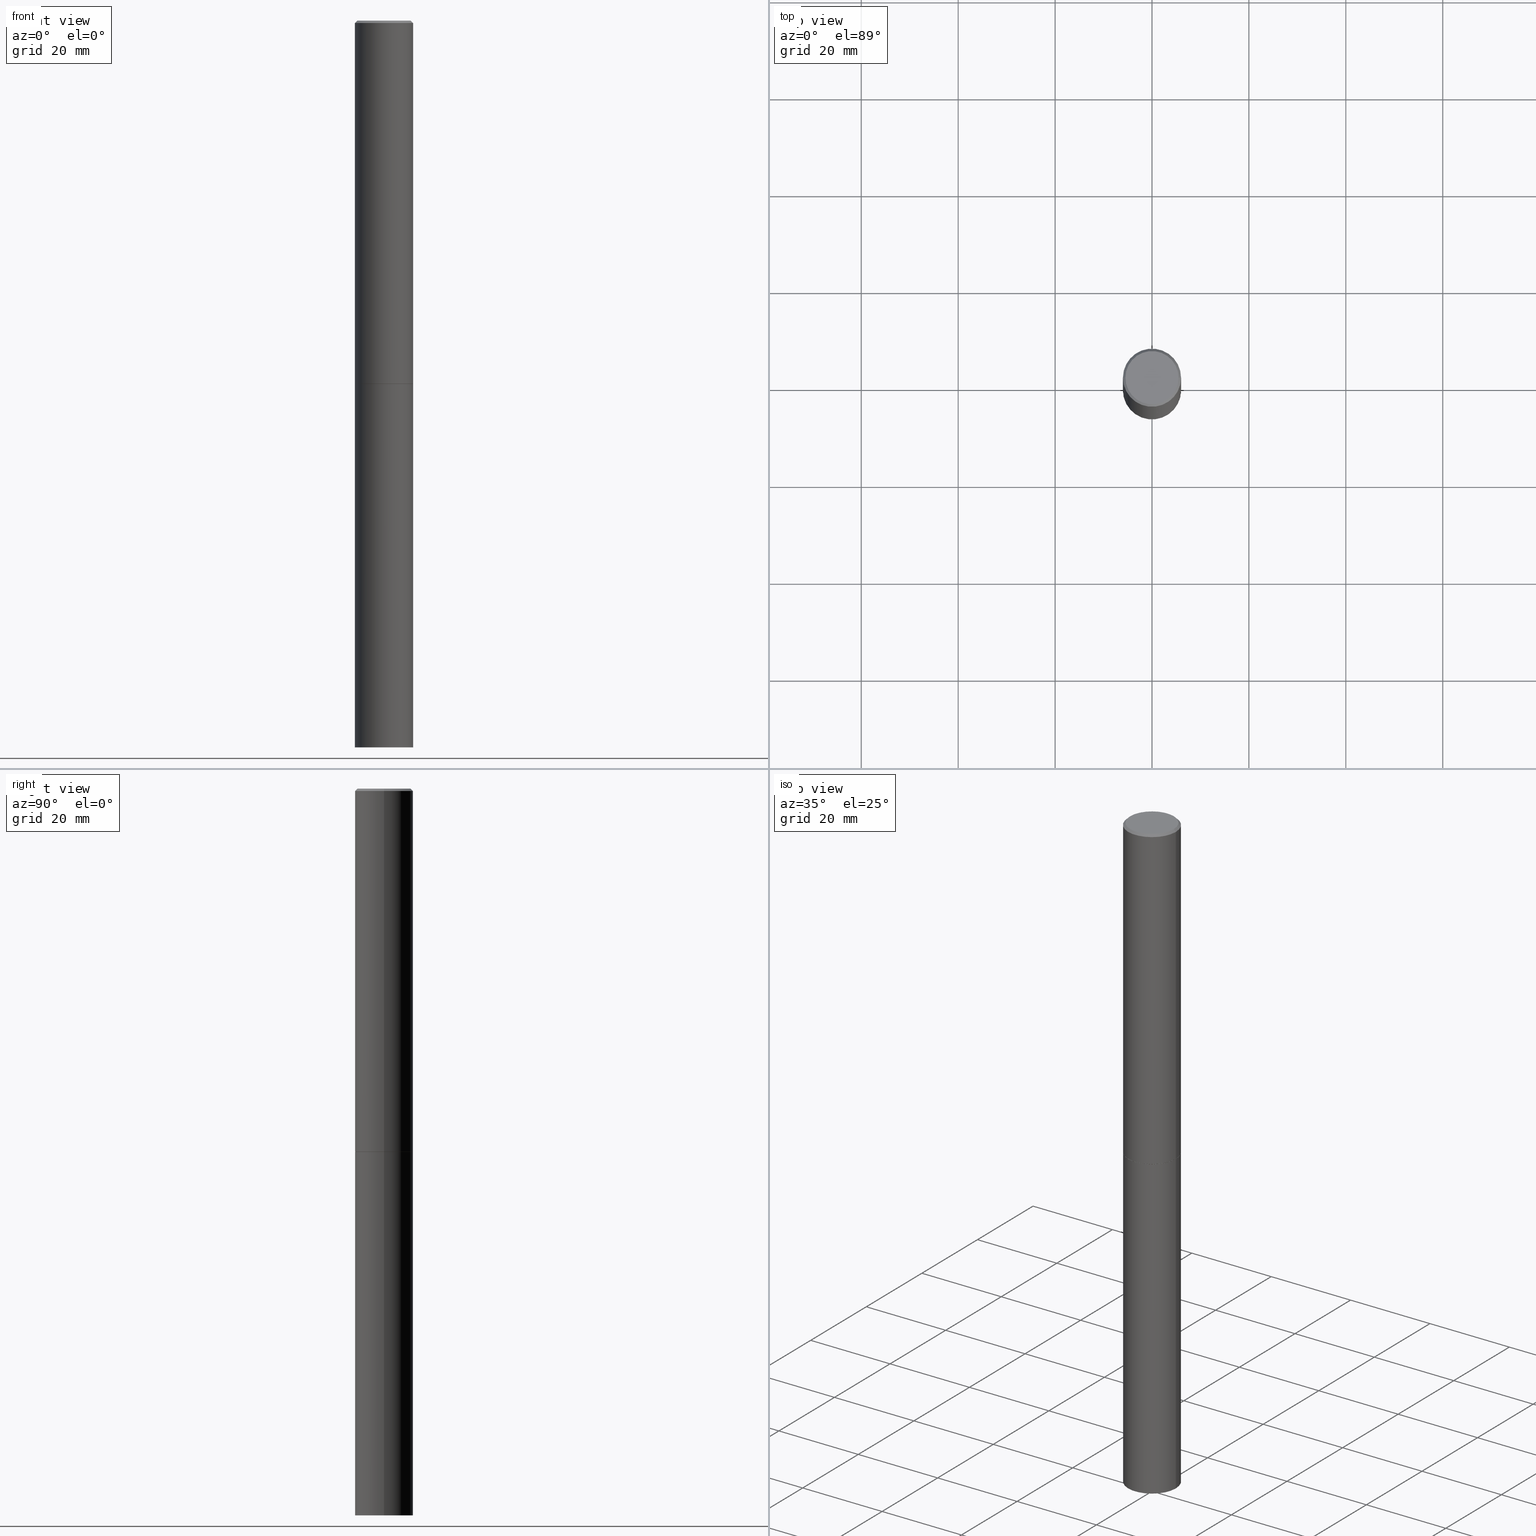
[diagram: canonical four-view strip — front | top / right | iso, engineering-drawing reading convention]
A machine part, canonical four-view strip (front | top / right | iso — engineering-drawing reading convention). The complete STEP part file that produces these views, byte-faithful:
ISO-10303-21;
HEADER;
FILE_DESCRIPTION (( 'STEP AP203' ),
    '1' );
FILE_NAME ('49486.STEP',
    '2024-02-28T23:41:48',
    ( '' ),
    ( '' ),
    'SwSTEP 2.0',
    'SolidWorks 2023',
    '' );
FILE_SCHEMA (( 'CONFIG_CONTROL_DESIGN' ));
ENDSEC;

DATA;
#1 = CARTESIAN_POINT ( 'NONE',  ( 1.444171603492632270E-28, -2.061894304653819197E-14, -5.905499999999999972 ) ) ;
#2 = CARTESIAN_POINT ( 'NONE',  ( 0.000000000000000000, 0.000000000000000000, 0.000000000000000000 ) ) ;
#3 = AXIS2_PLACEMENT_3D ( 'NONE', #2, #282, #364 ) ;
#4 = DIRECTION ( 'NONE',  ( 1.000000000000000000, -6.982962677686266711E-15, 0.000000000000000000 ) ) ;
#5 = PERSON ( 'UNSPECIFIED', 'UNSPECIFIED', 'UNSPECIFIED', ('UNSPECIFIED'), ('UNSPECIFIED'), ('UNSPECIFIED') ) ;
#6 = LINE ( 'NONE', #58, #337 ) ;
#7 = COORDINATED_UNIVERSAL_TIME_OFFSET ( 5, 0, .BEHIND. ) ;
#8 = FACE_OUTER_BOUND ( 'NONE', #331, .T. ) ;
#9 = CLOSED_SHELL ( 'NONE', ( #91, #102, #155, #70 ) ) ;
#10 = CARTESIAN_POINT ( 'NONE',  ( -0.2361999999999999933, 1.678301941865356591E-15, -1.161852468318208757E-29 ) ) ;
#11 = LINE ( 'NONE', #125, #37 ) ;
#12 = CARTESIAN_POINT ( 'NONE',  ( 4.890937612370292426E-31, -6.982962677686317493E-17, -0.02000000000000007674 ) ) ;
#13 = DIRECTION ( 'NONE',  ( -1.000000000000000000, 6.982962677686266711E-15, 0.000000000000000000 ) ) ;
#14 = LOCAL_TIME ( 18, 41, 48.00000000000000000, #334 ) ;
#15 = ORIENTED_EDGE ( 'NONE', *, *, #340, .T. ) ;
#16 = ORIENTED_EDGE ( 'NONE', *, *, #360, .T. ) ;
#17 = EDGE_LOOP ( 'NONE', ( #212, #162, #15, #189 ) ) ;
#18 = ORIENTED_EDGE ( 'NONE', *, *, #274, .F. ) ;
#19 = ORIENTED_EDGE ( 'NONE', *, *, #117, .T. ) ;
#20 = CARTESIAN_POINT ( 'NONE',  ( 7.220735744022852519E-29, -1.030929694920215502E-14, -2.952700000000000102 ) ) ;
#21 = CC_DESIGN_PERSON_AND_ORGANIZATION_ASSIGNMENT ( #275, #144, ( #49 ) ) ;
#22 = APPLICATION_PROTOCOL_DEFINITION ( 'international standard', 'config_control_design', 1994, #265 ) ;
#23 = AXIS2_PLACEMENT_3D ( 'NONE', #201, #35, #229 ) ;
#24 = DIRECTION ( 'NONE',  ( 1.000000000000000000, -6.982962677686266711E-15, 4.876176775795936353E-29 ) ) ;
#25 =( NAMED_UNIT ( * ) SI_UNIT ( $, .STERADIAN. ) SOLID_ANGLE_UNIT ( ) );
#26 = PERSON_AND_ORGANIZATION ( #5, #362 ) ;
#27 = DIRECTION ( 'NONE',  ( 2.438088387897960049E-29, -3.491481338843145188E-15, -1.000000000000000000 ) ) ;
#28 = APPROVAL_ROLE ( '' ) ;
#29 = CC_DESIGN_DATE_AND_TIME_ASSIGNMENT ( #194, #113, ( #224 ) ) ;
#30 = CARTESIAN_POINT ( 'NONE',  ( 7.220735744022852519E-29, -1.030929694920215502E-14, -2.952700000000000102 ) ) ;
#31 = COORDINATED_UNIVERSAL_TIME_OFFSET ( 5, 0, .BEHIND. ) ;
#32 = AXIS2_PLACEMENT_3D ( 'NONE', #173, #271, #219 ) ;
#33 = CARTESIAN_POINT ( 'NONE',  ( 7.218290275216666916E-29, -1.030580546786331359E-14, -2.951700000000000212 ) ) ;
#34 = APPROVAL_STATUS ( 'not_yet_approved' ) ;
#35 = DIRECTION ( 'NONE',  ( -2.445468806185136597E-29, 3.491481338843145583E-15, 1.000000000000000000 ) ) ;
#36 = LINE ( 'NONE', #95, #230 ) ;
#37 = VECTOR ( 'NONE', #63, 39.37007874015748143 ) ;
#38 = DIRECTION ( 'NONE',  ( -1.000000000000000000, 6.982962677686266711E-15, 0.000000000000000000 ) ) ;
#39 = DIRECTION ( 'NONE',  ( -2.445468806185136597E-29, 3.491481338843145583E-15, 1.000000000000000000 ) ) ;
#40 = ORIENTED_EDGE ( 'NONE', *, *, #157, .F. ) ;
#41 = DIRECTION ( 'NONE',  ( 0.7071067811866199593, -2.468850131083015945E-15, 0.7071067811864750752 ) ) ;
#42 = CIRCLE ( 'NONE', #72, 0.2361999999999999933 ) ;
#43 = VERTEX_POINT ( 'NONE', #158 ) ;
#44 = ORIENTED_EDGE ( 'NONE', *, *, #205, .T. ) ;
#45 = FACE_OUTER_BOUND ( 'NONE', #73, .T. ) ;
#46 = CIRCLE ( 'NONE', #153, 0.2361999999999999933 ) ;
#47 = AXIS2_PLACEMENT_3D ( 'NONE', #352, #177, #202 ) ;
#48 = VERTEX_POINT ( 'NONE', #267 ) ;
#49 = PRODUCT_DEFINITION ( 'UNKNOWN', '', #200, #298 ) ;
#50 = ORIENTED_EDGE ( 'NONE', *, *, #247, .F. ) ;
#51 = CC_DESIGN_PERSON_AND_ORGANIZATION_ASSIGNMENT ( #26, #168, ( #224 ) ) ;
#52 = PERSON_AND_ORGANIZATION ( #5, #362 ) ;
#53 = DIRECTION ( 'NONE',  ( 1.000000000000000000, -6.982962677686268288E-15, 0.000000000000000000 ) ) ;
#54 = AXIS2_PLACEMENT_3D ( 'NONE', #166, #273, #83 ) ;
#55 = SECURITY_CLASSIFICATION_LEVEL ( 'unclassified' ) ;
#56 = CONICAL_SURFACE ( 'NONE', #101, 0.2351999999999999924, 0.7853981633975507526 ) ;
#57 = CARTESIAN_POINT ( 'NONE',  ( 1.509716530915768746E-15, 0.2161999999999997257, -7.527240092128370190E-16 ) ) ;
#58 = CARTESIAN_POINT ( 'NONE',  ( 0.2361999999999999933, -1.649375784469496131E-15, 1.151752954443000088E-29 ) ) ;
#59 = DIRECTION ( 'NONE',  ( 2.438088387897960049E-29, -3.491481338843145188E-15, -1.000000000000000000 ) ) ;
#60 = PERSON_AND_ORGANIZATION ( #5, #362 ) ;
#61 = CIRCLE ( 'NONE', #208, 0.2361999999999999933 ) ;
#62 = CC_DESIGN_APPROVAL ( #328, ( #200 ) ) ;
#63 = DIRECTION ( 'NONE',  ( -0.7071067811865465735, 2.468850131082246805E-15, -0.7071067811865484609 ) ) ;
#64 = FACE_OUTER_BOUND ( 'NONE', #17, .T. ) ;
#65 = CIRCLE ( 'NONE', #288, 0.2351999999999999924 ) ;
#66 = CARTESIAN_POINT ( 'NONE',  ( 0.2361999999999999933, -1.195867273367164996E-14, -2.952700000000000102 ) ) ;
#67 = VERTEX_POINT ( 'NONE', #130 ) ;
#68 = CARTESIAN_POINT ( 'NONE',  ( 0.000000000000000000, 0.000000000000000000, 0.000000000000000000 ) ) ;
#69 = PRODUCT ( '49486', '49486', '', ( #197 ) ) ;
#70 = ADVANCED_FACE ( 'NONE', ( #45 ), #142, .T. ) ;
#71 = EDGE_LOOP ( 'NONE', ( #190, #16, #213, #127 ) ) ;
#72 = AXIS2_PLACEMENT_3D ( 'NONE', #146, #92, #124 ) ;
#73 = EDGE_LOOP ( 'NONE', ( #294, #321, #240, #104 ) ) ;
#74 = VERTEX_POINT ( 'NONE', #136 ) ;
#75 = ORIENTED_EDGE ( 'NONE', *, *, #354, .T. ) ;
#76 = AXIS2_PLACEMENT_3D ( 'NONE', #12, #204, #13 ) ;
#77 = EDGE_LOOP ( 'NONE', ( #50, #98, #329, #19 ) ) ;
#78 = CALENDAR_DATE ( 2024, 28, 2 ) ;
#79 = DIRECTION ( 'NONE',  ( -2.445468806185136597E-29, 3.491481338843145583E-15, 1.000000000000000000 ) ) ;
#80 = PERSON_AND_ORGANIZATION_ROLE ( 'creator' ) ;
#81 = DIRECTION ( 'NONE',  ( -2.445468806185136597E-29, 3.491481338843145583E-15, 1.000000000000000000 ) ) ;
#82 = DATE_TIME_ROLE ( 'creation_date' ) ;
#83 = DIRECTION ( 'NONE',  ( 1.000000000000000000, -6.982962677686266711E-15, 4.876176775795936353E-29 ) ) ;
#84 = APPLICATION_PROTOCOL_DEFINITION ( 'international standard', 'config_control_design', 1994, #323 ) ;
#85 = DIRECTION ( 'NONE',  ( -2.445468806185136597E-29, 3.491481338843145583E-15, 1.000000000000000000 ) ) ;
#86 = PLANE ( 'NONE',  #128 ) ;
#87 = EDGE_CURVE ( 'NONE', #270, #295, #61, .T. ) ;
#88 = LOCAL_TIME ( 18, 41, 48.00000000000000000, #139 ) ;
#89 = CARTESIAN_POINT ( 'NONE',  ( 7.220735744022852519E-29, -1.030929694920215502E-14, -2.952700000000000102 ) ) ;
#90 = DIRECTION ( 'NONE',  ( -2.445468806185136877E-29, 3.491481338843145188E-15, 1.000000000000000000 ) ) ;
#91 = ADVANCED_FACE ( 'NONE', ( #140 ), #363, .T. ) ;
#92 = DIRECTION ( 'NONE',  ( -2.445468806185136597E-29, 3.491481338843145583E-15, 1.000000000000000000 ) ) ;
#93 = EDGE_CURVE ( 'NONE', #186, #264, #65, .T. ) ;
#94 = CIRCLE ( 'NONE', #32, 0.2161999999999997257 ) ;
#95 = CARTESIAN_POINT ( 'NONE',  ( 0.2351999999999999924, -1.195168977099396553E-14, -2.952700000000000102 ) ) ;
#96 = DIRECTION ( 'NONE',  ( 0.7071067811865465735, -7.319954787623252890E-15, -0.7071067811865484609 ) ) ;
#97 = EDGE_CURVE ( 'NONE', #48, #74, #248, .T. ) ;
#98 = ORIENTED_EDGE ( 'NONE', *, *, #170, .F. ) ;
#99 = APPROVAL_PERSON_ORGANIZATION ( #311, #159, #28 ) ;
#100 = ORIENTED_EDGE ( 'NONE', *, *, #97, .T. ) ;
#101 = AXIS2_PLACEMENT_3D ( 'NONE', #347, #39, #285 ) ;
#102 = ADVANCED_FACE ( 'NONE', ( #196 ), #86, .T. ) ;
#103 = ORIENTED_EDGE ( 'NONE', *, *, #93, .F. ) ;
#104 = ORIENTED_EDGE ( 'NONE', *, *, #215, .F. ) ;
#105 = MANIFOLD_SOLID_BREP ( 'Body-Move/Copy2[1]', #9 ) ;
#106 = EDGE_LOOP ( 'NONE', ( #185, #132 ) ) ;
#107 = CIRCLE ( 'NONE', #361, 0.2351999999999999924 ) ;
#108 = VECTOR ( 'NONE', #90, 39.37007874015748143 ) ;
#109 = CARTESIAN_POINT ( 'NONE',  ( 4.890937612370292426E-31, -6.982962677686317493E-17, -0.02000000000000007674 ) ) ;
#110 = PERSON_AND_ORGANIZATION_ROLE ( 'design_owner' ) ;
#111 = DIRECTION ( 'NONE',  ( 1.000000000000000000, -6.982962677686268288E-15, 0.000000000000000000 ) ) ;
#112 = DIRECTION ( 'NONE',  ( 1.000000000000000000, -6.982962677686265133E-15, 0.000000000000000000 ) ) ;
#113 = DATE_TIME_ROLE ( 'classification_date' ) ;
#114 = FACE_OUTER_BOUND ( 'NONE', #214, .T. ) ;
#115 = APPROVAL_STATUS ( 'not_yet_approved' ) ;
#116 = DIRECTION ( 'NONE',  ( -2.445468806185136597E-29, 3.491481338843145583E-15, 1.000000000000000000 ) ) ;
#117 = EDGE_CURVE ( 'NONE', #74, #67, #262, .T. ) ;
#118 =( CONVERSION_BASED_UNIT ( 'INCH', #238 ) LENGTH_UNIT ( ) NAMED_UNIT ( #290 ) );
#119 = APPROVAL ( #115, 'UNSPECIFIED' ) ;
#120 = DIRECTION ( 'NONE',  ( -2.445468806185136597E-29, 3.491481338843145583E-15, 1.000000000000000000 ) ) ;
#121 = CARTESIAN_POINT ( 'NONE',  ( 0.2161999999999997257, -1.586759460484350213E-15, 4.268512490111238857E-18 ) ) ;
#122 = ADVANCED_FACE ( 'NONE', ( #114 ), #188, .T. ) ;
#123 = CARTESIAN_POINT ( 'NONE',  ( 0.2361999999999999933, -1.195518125233281011E-14, -2.951700000000000212 ) ) ;
#124 = DIRECTION ( 'NONE',  ( 1.000000000000000000, -6.982962677686273021E-15, 0.000000000000000000 ) ) ;
#125 = CARTESIAN_POINT ( 'NONE',  ( -0.2361999999999997712, 1.579546157692631452E-15, -0.02000000000000007674 ) ) ;
#126 = VERTEX_POINT ( 'NONE', #195 ) ;
#127 = ORIENTED_EDGE ( 'NONE', *, *, #143, .F. ) ;
#128 = AXIS2_PLACEMENT_3D ( 'NONE', #304, #312, #216 ) ;
#129 = AXIS2_PLACEMENT_3D ( 'NONE', #68, #255, #234 ) ;
#130 = CARTESIAN_POINT ( 'NONE',  ( 0.2361999999999997712, -1.690279253850497193E-15, -0.02000000000000007674 ) ) ;
#131 = ORIENTED_EDGE ( 'NONE', *, *, #258, .T. ) ;
#132 = ORIENTED_EDGE ( 'NONE', *, *, #215, .T. ) ;
#133 = DIRECTION ( 'NONE',  ( -2.445468806185136877E-29, 3.491481338843145188E-15, 1.000000000000000000 ) ) ;
#134 = AXIS2_PLACEMENT_3D ( 'NONE', #20, #245, #169 ) ;
#135 = PERSON_AND_ORGANIZATION ( #5, #362 ) ;
#136 = CARTESIAN_POINT ( 'NONE',  ( -0.2361999999999997712, 1.579546157692631452E-15, -0.02000000000000007674 ) ) ;
#137 = CALENDAR_DATE ( 2024, 28, 2 ) ;
#138 = DIRECTION ( 'NONE',  ( 1.000000000000000000, -6.982962677686268288E-15, 0.000000000000000000 ) ) ;
#139 = COORDINATED_UNIVERSAL_TIME_OFFSET ( 5, 0, .BEHIND. ) ;
#140 = FACE_OUTER_BOUND ( 'NONE', #71, .T. ) ;
#141 = PRODUCT_DEFINITION_SHAPE ( 'NONE', 'NONE',  #49 ) ;
#142 = CYLINDRICAL_SURFACE ( 'NONE', #279, 0.2361999999999999933 ) ;
#143 = EDGE_CURVE ( 'NONE', #270, #236, #6, .T. ) ;
#144 = PERSON_AND_ORGANIZATION_ROLE ( 'creator' ) ;
#145 = FACE_OUTER_BOUND ( 'NONE', #358, .T. ) ;
#146 = CARTESIAN_POINT ( 'NONE',  ( 1.444171603492632270E-28, -2.061894304653819197E-14, -5.905499999999999972 ) ) ;
#147 = AXIS2_PLACEMENT_3D ( 'NONE', #109, #85, #4 ) ;
#148 = EDGE_CURVE ( 'NONE', #236, #43, #221, .T. ) ;
#149 =( LENGTH_UNIT ( ) NAMED_UNIT ( * ) SI_UNIT ( $, .METRE. ) );
#150 = FACE_OUTER_BOUND ( 'NONE', #297, .T. ) ;
#151 = ADVANCED_BREP_SHAPE_REPRESENTATION ( '49486', ( #105, #211, #3 ), #289 ) ;
#152 = LINE ( 'NONE', #291, #307 ) ;
#153 = AXIS2_PLACEMENT_3D ( 'NONE', #33, #116, #344 ) ;
#154 = AXIS2_PLACEMENT_3D ( 'NONE', #89, #287, #315 ) ;
#155 = ADVANCED_FACE ( 'NONE', ( #171 ), #342, .F. ) ;
#156 = ORIENTED_EDGE ( 'NONE', *, *, #258, .F. ) ;
#157 = EDGE_CURVE ( 'NONE', #264, #186, #107, .T. ) ;
#158 = CARTESIAN_POINT ( 'NONE',  ( -0.2361999999999999933, -1.378581805600481631E-14, -2.952700000000000102 ) ) ;
#159 = APPROVAL ( #34, 'UNSPECIFIED' ) ;
#160 = CC_DESIGN_APPROVAL ( #119, ( #224 ) ) ;
#161 = ORIENTED_EDGE ( 'NONE', *, *, #354, .F. ) ;
#162 = ORIENTED_EDGE ( 'NONE', *, *, #93, .T. ) ;
#163 = EDGE_CURVE ( 'NONE', #48, #300, #46, .T. ) ;
#164 = DIRECTION ( 'NONE',  ( -0.7071067811866199593, 7.493145998870616062E-15, 0.7071067811864750752 ) ) ;
#165 = DATE_AND_TIME ( #226, #88 ) ;
#166 = CARTESIAN_POINT ( 'NONE',  ( 0.000000000000000000, 0.000000000000000000, 0.000000000000000000 ) ) ;
#167 = CC_DESIGN_SECURITY_CLASSIFICATION ( #224, ( #200 ) ) ;
#168 = PERSON_AND_ORGANIZATION_ROLE ( 'classification_officer' ) ;
#169 = DIRECTION ( 'NONE',  ( 1.000000000000000000, -6.982962677686265133E-15, 0.000000000000000000 ) ) ;
#170 = EDGE_CURVE ( 'NONE', #126, #241, #94, .T. ) ;
#171 = FACE_OUTER_BOUND ( 'NONE', #106, .T. ) ;
#172 = COORDINATED_UNIVERSAL_TIME_OFFSET ( 5, 0, .BEHIND. ) ;
#173 = CARTESIAN_POINT ( 'NONE',  ( -1.043851414335219820E-46, 1.490343170380447200E-32, 4.268512490100411279E-18 ) ) ;
#174 = CIRCLE ( 'NONE', #47, 0.2161999999999997257 ) ;
#175 = CYLINDRICAL_SURFACE ( 'NONE', #129, 0.2361999999999998545 ) ;
#176 = DIRECTION ( 'NONE',  ( 2.445468806185136597E-29, -3.491481338843145583E-15, -1.000000000000000000 ) ) ;
#177 = DIRECTION ( 'NONE',  ( -2.445468806185136597E-29, 3.491481338843145583E-15, 1.000000000000000000 ) ) ;
#178 = AXIS2_PLACEMENT_3D ( 'NONE', #333, #81, #111 ) ;
#179 = CC_DESIGN_APPROVAL ( #159, ( #49 ) ) ;
#180 = CARTESIAN_POINT ( 'NONE',  ( -0.2361999999999999933, -1.378581805600481631E-14, -5.905499999999999972 ) ) ;
#181 = ORIENTED_EDGE ( 'NONE', *, *, #157, .T. ) ;
#182 = DIRECTION ( 'NONE',  ( 1.000000000000000000, -6.982962677686266711E-15, 4.876176775795935793E-29 ) ) ;
#183 = CC_DESIGN_PERSON_AND_ORGANIZATION_ASSIGNMENT ( #341, #110, ( #69 ) ) ;
#184 = LOCAL_TIME ( 18, 41, 48.00000000000000000, #7 ) ;
#185 = ORIENTED_EDGE ( 'NONE', *, *, #148, .T. ) ;
#186 = VERTEX_POINT ( 'NONE', #193 ) ;
#187 = ORIENTED_EDGE ( 'NONE', *, *, #247, .T. ) ;
#188 = CONICAL_SURFACE ( 'NONE', #178, 0.2351999999999999924, 0.7853981633975507526 ) ;
#189 = ORIENTED_EDGE ( 'NONE', *, *, #163, .F. ) ;
#190 = ORIENTED_EDGE ( 'NONE', *, *, #87, .T. ) ;
#191 = CARTESIAN_POINT ( 'NONE',  ( -0.2361999999999998545, 1.678301941865355605E-15, -1.161852468318208056E-29 ) ) ;
#192 = PERSON_AND_ORGANIZATION_ROLE ( 'design_supplier' ) ;
#193 = CARTESIAN_POINT ( 'NONE',  ( -0.2351999999999999924, -8.632801980346176439E-15, -2.952700000000000102 ) ) ;
#194 = DATE_AND_TIME ( #137, #272 ) ;
#195 = CARTESIAN_POINT ( 'NONE',  ( -0.2161999999999997257, 1.544631344304200197E-15, 4.268512490089730842E-18 ) ) ;
#196 = FACE_OUTER_BOUND ( 'NONE', #210, .T. ) ;
#197 = MECHANICAL_CONTEXT ( 'NONE', #265, 'mechanical' ) ;
#198 = LINE ( 'NONE', #314, #199 ) ;
#199 = VECTOR ( 'NONE', #164, 39.37007874015748143 ) ;
#200 = PRODUCT_DEFINITION_FORMATION_WITH_SPECIFIED_SOURCE ( 'ANY', '', #69, .NOT_KNOWN. ) ;
#201 = CARTESIAN_POINT ( 'NONE',  ( 7.218290275216666916E-29, -1.030580546786331359E-14, -2.951700000000000212 ) ) ;
#202 = DIRECTION ( 'NONE',  ( 1.000000000000000000, -6.982962677686267499E-15, 4.876217060660161841E-29 ) ) ;
#203 = AXIS2_PLACEMENT_3D ( 'NONE', #223, #59, #227 ) ;
#204 = DIRECTION ( 'NONE',  ( 2.445468806185136597E-29, -3.491481338843145583E-15, -1.000000000000000000 ) ) ;
#205 = EDGE_CURVE ( 'NONE', #186, #48, #198, .T. ) ;
#206 = CARTESIAN_POINT ( 'NONE',  ( 0.2351999999999999924, -1.195168977099396553E-14, -2.952700000000000102 ) ) ;
#207 = ORIENTED_EDGE ( 'NONE', *, *, #163, .T. ) ;
#208 = AXIS2_PLACEMENT_3D ( 'NONE', #1, #339, #277 ) ;
#209 = CONICAL_SURFACE ( 'NONE', #252, 0.2361999999999997712, 0.7853981633974469467 ) ;
#210 = EDGE_LOOP ( 'NONE', ( #326, #359 ) ) ;
#211 = MANIFOLD_SOLID_BREP ( 'Body-Move/Copy2[2]', #257 ) ;
#212 = ORIENTED_EDGE ( 'NONE', *, *, #205, .F. ) ;
#213 = ORIENTED_EDGE ( 'NONE', *, *, #148, .F. ) ;
#214 = EDGE_LOOP ( 'NONE', ( #181, #44, #18, #353 ) ) ;
#215 = EDGE_CURVE ( 'NONE', #43, #236, #293, .T. ) ;
#216 = DIRECTION ( 'NONE',  ( -1.000000000000000000, 6.982962677686265922E-15, -4.876176775795935793E-29 ) ) ;
#217 = DATE_AND_TIME ( #343, #184 ) ;
#218 = ADVANCED_FACE ( 'NONE', ( #335 ), #308, .F. ) ;
#219 = DIRECTION ( 'NONE',  ( 1.000000000000000000, -6.982962677686267499E-15, 4.876217060660161841E-29 ) ) ;
#220 = CALENDAR_DATE ( 2024, 28, 2 ) ;
#221 = CIRCLE ( 'NONE', #319, 0.2361999999999999933 ) ;
#222 = ADVANCED_FACE ( 'NONE', ( #145 ), #232, .T. ) ;
#223 = CARTESIAN_POINT ( 'NONE',  ( 1.649375784469568312E-15, 0.2361999999999896960, -2.952700000000000990 ) ) ;
#224 = SECURITY_CLASSIFICATION ( '', '', #55 ) ;
#225 = DIRECTION ( 'NONE',  ( -2.445468806185136597E-29, 3.491481338843145583E-15, 1.000000000000000000 ) ) ;
#226 = CALENDAR_DATE ( 2024, 28, 2 ) ;
#227 = DIRECTION ( 'NONE',  ( -1.000000000000000000, 6.982962677686265922E-15, -4.876176775795935793E-29 ) ) ;
#228 = EDGE_CURVE ( 'NONE', #126, #74, #11, .T. ) ;
#229 = DIRECTION ( 'NONE',  ( 1.000000000000000000, -6.982962677686265133E-15, 0.000000000000000000 ) ) ;
#230 = VECTOR ( 'NONE', #41, 39.37007874015748143 ) ;
#231 = CARTESIAN_POINT ( 'NONE',  ( 0.000000000000000000, 0.000000000000000000, 0.000000000000000000 ) ) ;
#232 = CYLINDRICAL_SURFACE ( 'NONE', #281, 0.2361999999999998545 ) ;
#233 = EDGE_CURVE ( 'NONE', #295, #270, #42, .T. ) ;
#234 = DIRECTION ( 'NONE',  ( 1.000000000000000000, -6.982962677686266711E-15, 4.876176775795935793E-29 ) ) ;
#235 = DIRECTION ( 'NONE',  ( -2.445468806185136597E-29, 3.491481338843145583E-15, 1.000000000000000000 ) ) ;
#236 = VERTEX_POINT ( 'NONE', #66 ) ;
#237 = ORIENTED_EDGE ( 'NONE', *, *, #274, .T. ) ;
#238 = LENGTH_MEASURE_WITH_UNIT ( LENGTH_MEASURE( 0.02539999999999999897 ), #149 );
#239 = VECTOR ( 'NONE', #96, 39.37007874015748143 ) ;
#240 = ORIENTED_EDGE ( 'NONE', *, *, #143, .T. ) ;
#241 = VERTEX_POINT ( 'NONE', #121 ) ;
#242 = ORIENTED_EDGE ( 'NONE', *, *, #170, .T. ) ;
#243 = PRODUCT_RELATED_PRODUCT_CATEGORY ( 'detail', '', ( #69 ) ) ;
#244 = APPROVAL_PERSON_ORGANIZATION ( #253, #119, #336 ) ;
#245 = DIRECTION ( 'NONE',  ( -2.445468806185136597E-29, 3.491481338843145583E-15, 1.000000000000000000 ) ) ;
#246 = DATE_AND_TIME ( #220, #14 ) ;
#247 = EDGE_CURVE ( 'NONE', #241, #67, #261, .T. ) ;
#248 = LINE ( 'NONE', #191, #306 ) ;
#249 = SHAPE_DEFINITION_REPRESENTATION ( #141, #151 ) ;
#250 = DIRECTION ( 'NONE',  ( -1.000000000000000000, 6.982962677686265922E-15, -4.876176775795935793E-29 ) ) ;
#251 = CARTESIAN_POINT ( 'NONE',  ( 0.000000000000000000, 0.000000000000000000, 0.000000000000000000 ) ) ;
#252 = AXIS2_PLACEMENT_3D ( 'NONE', #350, #176, #38 ) ;
#253 = PERSON_AND_ORGANIZATION ( #5, #362 ) ;
#254 = DIRECTION ( 'NONE',  ( -2.445468806185136597E-29, 3.491481338843145583E-15, 1.000000000000000000 ) ) ;
#255 = DIRECTION ( 'NONE',  ( -2.445468806185136597E-29, 3.491481338843145583E-15, 1.000000000000000000 ) ) ;
#256 = DIRECTION ( 'NONE',  ( -2.445468806185136877E-29, 3.491481338843145188E-15, 1.000000000000000000 ) ) ;
#257 = CLOSED_SHELL ( 'NONE', ( #122, #286, #356, #303, #222, #332, #299, #218 ) ) ;
#258 = EDGE_CURVE ( 'NONE', #241, #126, #174, .T. ) ;
#259 = CC_DESIGN_PERSON_AND_ORGANIZATION_ASSIGNMENT ( #60, #192, ( #200 ) ) ;
#260 = DIRECTION ( 'NONE',  ( 1.000000000000000000, -6.982962677686266711E-15, 0.000000000000000000 ) ) ;
#261 = LINE ( 'NONE', #284, #239 ) ;
#262 = CIRCLE ( 'NONE', #147, 0.2361999999999997712 ) ;
#263 = AXIS2_PLACEMENT_3D ( 'NONE', #292, #120, #260 ) ;
#264 = VERTEX_POINT ( 'NONE', #206 ) ;
#265 = APPLICATION_CONTEXT ( 'configuration controlled 3d designs of mechanical parts and assemblies' ) ;
#266 = ORIENTED_EDGE ( 'NONE', *, *, #97, .F. ) ;
#267 = CARTESIAN_POINT ( 'NONE',  ( -0.2362000000000000210, -3.509515605454727710E-15, -2.951700000000000212 ) ) ;
#268 = APPROVAL_PERSON_ORGANIZATION ( #135, #328, #366 ) ;
#269 = ORIENTED_EDGE ( 'NONE', *, *, #296, .T. ) ;
#270 = VERTEX_POINT ( 'NONE', #318 ) ;
#271 = DIRECTION ( 'NONE',  ( -2.445468806185136597E-29, 3.491481338843145583E-15, 1.000000000000000000 ) ) ;
#272 = LOCAL_TIME ( 18, 41, 48.00000000000000000, #31 ) ;
#273 = DIRECTION ( 'NONE',  ( -2.445468806185136597E-29, 3.491481338843145583E-15, 1.000000000000000000 ) ) ;
#274 = EDGE_CURVE ( 'NONE', #300, #48, #346, .T. ) ;
#275 = PERSON_AND_ORGANIZATION ( #5, #362 ) ;
#276 = DIRECTION ( 'NONE',  ( -2.445468806185136597E-29, 3.491481338843145583E-15, 1.000000000000000000 ) ) ;
#277 = DIRECTION ( 'NONE',  ( 1.000000000000000000, -6.982962677686273021E-15, 0.000000000000000000 ) ) ;
#278 = APPROVAL_DATE_TIME ( #309, #159 ) ;
#279 = AXIS2_PLACEMENT_3D ( 'NONE', #251, #79, #24 ) ;
#280 = CARTESIAN_POINT ( 'NONE',  ( 7.220735744022852519E-29, -1.030929694920215502E-14, -2.952700000000000102 ) ) ;
#281 = AXIS2_PLACEMENT_3D ( 'NONE', #231, #235, #182 ) ;
#282 = DIRECTION ( 'NONE',  ( 0.000000000000000000, 0.000000000000000000, 1.000000000000000000 ) ) ;
#283 = CC_DESIGN_PERSON_AND_ORGANIZATION_ASSIGNMENT ( #52, #80, ( #200 ) ) ;
#284 = CARTESIAN_POINT ( 'NONE',  ( 0.2361999999999997712, -1.690279253850497193E-15, -0.02000000000000007674 ) ) ;
#285 = DIRECTION ( 'NONE',  ( 1.000000000000000000, -6.982962677686268288E-15, 0.000000000000000000 ) ) ;
#286 = ADVANCED_FACE ( 'NONE', ( #8 ), #175, .T. ) ;
#287 = DIRECTION ( 'NONE',  ( -2.438088387897960049E-29, 3.491481338843145188E-15, 1.000000000000000000 ) ) ;
#288 = AXIS2_PLACEMENT_3D ( 'NONE', #365, #254, #138 ) ;
#289 =( GEOMETRIC_REPRESENTATION_CONTEXT ( 3 ) GLOBAL_UNCERTAINTY_ASSIGNED_CONTEXT ( ( #348 ) ) GLOBAL_UNIT_ASSIGNED_CONTEXT ( ( #118, #325, #25 ) ) REPRESENTATION_CONTEXT ( 'NONE', 'WORKASPACE' ) );
#290 = DIMENSIONAL_EXPONENTS ( 1.000000000000000000, 0.000000000000000000, 0.000000000000000000, 0.000000000000000000, 0.000000000000000000, 0.000000000000000000, 0.000000000000000000 ) ;
#291 = CARTESIAN_POINT ( 'NONE',  ( 0.2361999999999998545, -1.649375784469495145E-15, 1.151752954442999387E-29 ) ) ;
#292 = CARTESIAN_POINT ( 'NONE',  ( 4.890937612370292426E-31, -6.982962677686317493E-17, -0.02000000000000007674 ) ) ;
#293 = CIRCLE ( 'NONE', #134, 0.2361999999999999933 ) ;
#294 = ORIENTED_EDGE ( 'NONE', *, *, #360, .F. ) ;
#295 = VERTEX_POINT ( 'NONE', #180 ) ;
#296 = EDGE_CURVE ( 'NONE', #67, #74, #330, .T. ) ;
#297 = EDGE_LOOP ( 'NONE', ( #156, #187, #269, #322 ) ) ;
#298 = DESIGN_CONTEXT ( 'detailed design', #323, 'design' ) ;
#299 = ADVANCED_FACE ( 'NONE', ( #316 ), #345, .F. ) ;
#300 = VERTEX_POINT ( 'NONE', #123 ) ;
#301 = ORIENTED_EDGE ( 'NONE', *, *, #296, .F. ) ;
#302 = APPROVAL_STATUS ( 'not_yet_approved' ) ;
#303 = ADVANCED_FACE ( 'NONE', ( #349 ), #209, .T. ) ;
#304 = CARTESIAN_POINT ( 'NONE',  ( 1.649375784469640295E-15, 0.2361999999999793709, -5.905500000000000860 ) ) ;
#305 = APPROVAL_DATE_TIME ( #246, #328 ) ;
#306 = VECTOR ( 'NONE', #133, 39.37007874015748143 ) ;
#307 = VECTOR ( 'NONE', #256, 39.37007874015748143 ) ;
#308 = PLANE ( 'NONE',  #324 ) ;
#309 = DATE_AND_TIME ( #78, #338 ) ;
#310 = DIRECTION ( 'NONE',  ( -2.445468806185136877E-29, 3.491481338843145188E-15, 1.000000000000000000 ) ) ;
#311 = PERSON_AND_ORGANIZATION ( #5, #362 ) ;
#312 = DIRECTION ( 'NONE',  ( 2.438088387897960049E-29, -3.491481338843145188E-15, -1.000000000000000000 ) ) ;
#313 = APPROVAL_DATE_TIME ( #165, #119 ) ;
#314 = CARTESIAN_POINT ( 'NONE',  ( -0.2351999999999999924, -8.638100434694398841E-15, -2.952700000000000102 ) ) ;
#315 = DIRECTION ( 'NONE',  ( 1.000000000000000000, -6.982962677686265922E-15, 4.876176775795935793E-29 ) ) ;
#316 = FACE_OUTER_BOUND ( 'NONE', #327, .T. ) ;
#317 = CC_DESIGN_DATE_AND_TIME_ASSIGNMENT ( #217, #82, ( #49 ) ) ;
#318 = CARTESIAN_POINT ( 'NONE',  ( 0.2361999999999999933, -2.226831883100769165E-14, -5.905499999999999972 ) ) ;
#319 = AXIS2_PLACEMENT_3D ( 'NONE', #30, #225, #112 ) ;
#320 = LINE ( 'NONE', #10, #108 ) ;
#321 = ORIENTED_EDGE ( 'NONE', *, *, #233, .T. ) ;
#322 = ORIENTED_EDGE ( 'NONE', *, *, #228, .F. ) ;
#323 = APPLICATION_CONTEXT ( 'configuration controlled 3d designs of mechanical parts and assemblies' ) ;
#324 = AXIS2_PLACEMENT_3D ( 'NONE', #57, #27, #250 ) ;
#325 =( NAMED_UNIT ( * ) PLANE_ANGLE_UNIT ( ) SI_UNIT ( $, .RADIAN. ) );
#326 = ORIENTED_EDGE ( 'NONE', *, *, #87, .F. ) ;
#327 = EDGE_LOOP ( 'NONE', ( #40, #103 ) ) ;
#328 = APPROVAL ( #302, 'UNSPECIFIED' ) ;
#329 = ORIENTED_EDGE ( 'NONE', *, *, #228, .T. ) ;
#330 = CIRCLE ( 'NONE', #263, 0.2361999999999997712 ) ;
#331 = EDGE_LOOP ( 'NONE', ( #237, #100, #301, #161 ) ) ;
#332 = ADVANCED_FACE ( 'NONE', ( #64 ), #56, .T. ) ;
#333 = CARTESIAN_POINT ( 'NONE',  ( 7.220735744022852519E-29, -1.030929694920215502E-14, -2.952700000000000102 ) ) ;
#334 = COORDINATED_UNIVERSAL_TIME_OFFSET ( 5, 0, .BEHIND. ) ;
#335 = FACE_OUTER_BOUND ( 'NONE', #357, .T. ) ;
#336 = APPROVAL_ROLE ( '' ) ;
#337 = VECTOR ( 'NONE', #310, 39.37007874015748143 ) ;
#338 = LOCAL_TIME ( 18, 41, 48.00000000000000000, #172 ) ;
#339 = DIRECTION ( 'NONE',  ( -2.445468806185136597E-29, 3.491481338843145583E-15, 1.000000000000000000 ) ) ;
#340 = EDGE_CURVE ( 'NONE', #264, #300, #36, .T. ) ;
#341 = PERSON_AND_ORGANIZATION ( #5, #362 ) ;
#342 = PLANE ( 'NONE',  #203 ) ;
#343 = CALENDAR_DATE ( 2024, 28, 2 ) ;
#344 = DIRECTION ( 'NONE',  ( 1.000000000000000000, -6.982962677686265133E-15, 0.000000000000000000 ) ) ;
#345 = PLANE ( 'NONE',  #154 ) ;
#346 = CIRCLE ( 'NONE', #23, 0.2361999999999999933 ) ;
#347 = CARTESIAN_POINT ( 'NONE',  ( 7.220735744022852519E-29, -1.030929694920215502E-14, -2.952700000000000102 ) ) ;
#348 = UNCERTAINTY_MEASURE_WITH_UNIT (LENGTH_MEASURE( 1.000000000000000082E-05 ), #118, 'distance_accuracy_value', 'NONE');
#349 = FACE_OUTER_BOUND ( 'NONE', #77, .T. ) ;
#350 = CARTESIAN_POINT ( 'NONE',  ( 4.890937612370292426E-31, -6.982962677686317493E-17, -0.02000000000000007674 ) ) ;
#351 = CONICAL_SURFACE ( 'NONE', #76, 0.2361999999999997712, 0.7853981633974469467 ) ;
#352 = CARTESIAN_POINT ( 'NONE',  ( -1.043851414335219820E-46, 1.490343170380447200E-32, 4.268512490100411279E-18 ) ) ;
#353 = ORIENTED_EDGE ( 'NONE', *, *, #340, .F. ) ;
#354 = EDGE_CURVE ( 'NONE', #300, #67, #152, .T. ) ;
#355 = ORIENTED_EDGE ( 'NONE', *, *, #117, .F. ) ;
#356 = ADVANCED_FACE ( 'NONE', ( #150 ), #351, .T. ) ;
#357 = EDGE_LOOP ( 'NONE', ( #242, #131 ) ) ;
#358 = EDGE_LOOP ( 'NONE', ( #266, #207, #75, #355 ) ) ;
#359 = ORIENTED_EDGE ( 'NONE', *, *, #233, .F. ) ;
#360 = EDGE_CURVE ( 'NONE', #295, #43, #320, .T. ) ;
#361 = AXIS2_PLACEMENT_3D ( 'NONE', #280, #276, #53 ) ;
#362 = ORGANIZATION ( 'UNSPECIFIED', 'UNSPECIFIED', '' ) ;
#363 = CYLINDRICAL_SURFACE ( 'NONE', #54, 0.2361999999999999933 ) ;
#364 = DIRECTION ( 'NONE',  ( 1.000000000000000000, 0.000000000000000000, 0.000000000000000000 ) ) ;
#365 = CARTESIAN_POINT ( 'NONE',  ( 7.220735744022852519E-29, -1.030929694920215502E-14, -2.952700000000000102 ) ) ;
#366 = APPROVAL_ROLE ( '' ) ;
ENDSEC;
END-ISO-10303-21;
